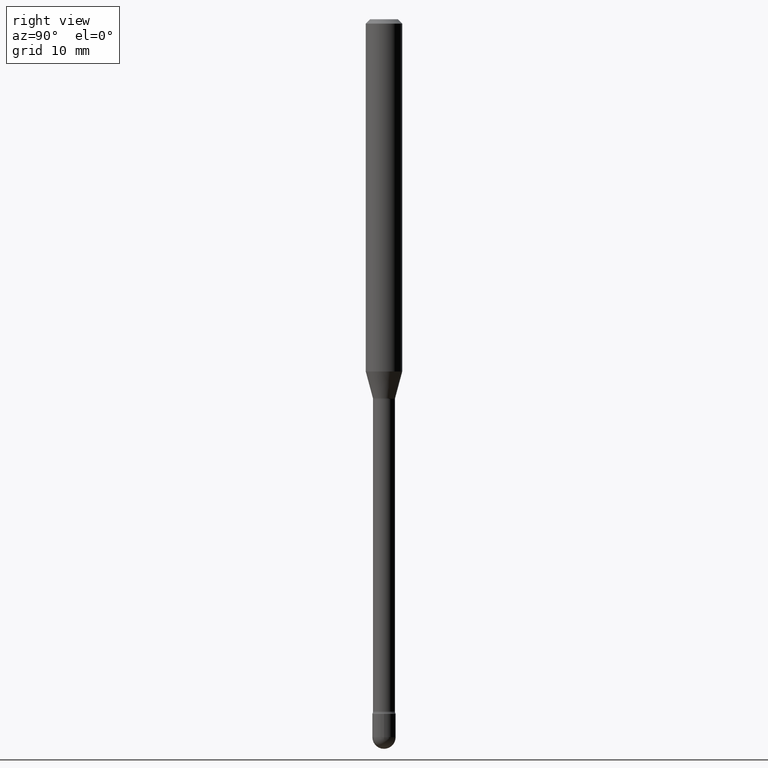
[diagram: clean part render]
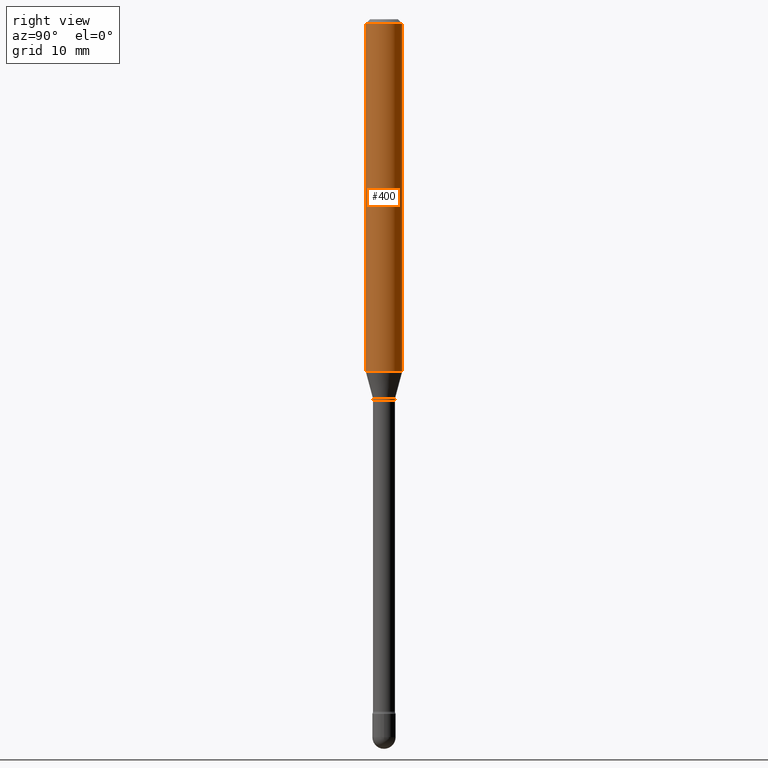
[diagram: same view with one face highlighted and labeled with its STEP entity id]
A machine part, right view. The second image highlights one B-rep face of the part: STEP entity #400.
In plain terms, the highlighted cylindrical surface (edge-blend (fillet) strip) has radius 1.5875 mm, axis along (-0, 0, 1).
Its self-contained STEP definition (entity closure, byte-faithful):
#13 = DIRECTION ( 'NONE',  ( -2.445460948409306574E-29, 3.491492591625370773E-15, 1.000000000000000000 ) ) ;
#57 = FACE_OUTER_BOUND ( 'NONE', #298, .T. ) ;
#109 = DIRECTION ( 'NONE',  ( -2.445460948409306574E-29, 3.491492591625370773E-15, 1.000000000000000000 ) ) ;
#113 = ORIENTED_EDGE ( 'NONE', *, *, #299, .T. ) ;
#115 = CARTESIAN_POINT ( 'NONE',  ( -4.364351673553916201E-16, -0.06250000000000000000, 6.962916858678317119E-16 ) ) ;
#131 = VERTEX_POINT ( 'NONE', #448 ) ;
#152 = CARTESIAN_POINT ( 'NONE',  ( 4.440892098500918040E-16, 0.06249999999999574646, -1.207071934891535525 ) ) ;
#170 = EDGE_CURVE ( 'NONE', #416, #206, #246, .T. ) ;
#172 = ORIENTED_EDGE ( 'NONE', *, *, #491, .T. ) ;
#198 = DIRECTION ( 'NONE',  ( -2.445460948409306855E-29, 3.491492591625370773E-15, 1.000000000000000000 ) ) ;
#206 = VERTEX_POINT ( 'NONE', #341 ) ;
#233 = DIRECTION ( 'NONE',  ( -2.445460948409306574E-29, 3.491492591625370773E-15, 1.000000000000000000 ) ) ;
#235 = EDGE_CURVE ( 'NONE', #206, #131, #370, .T. ) ;
#237 = DIRECTION ( 'NONE',  ( -2.445460948409306855E-29, 3.491492591625370773E-15, 1.000000000000000000 ) ) ;
#246 = LINE ( 'NONE', #115, #420 ) ;
#251 = DIRECTION ( 'NONE',  ( -6.982962677686265922E-15, -1.000000000000000000, 4.370956789862821150E-15 ) ) ;
#263 = DIRECTION ( 'NONE',  ( -6.982962677686265922E-15, -1.000000000000000000, 3.483106191921935554E-15 ) ) ;
#267 = ORIENTED_EDGE ( 'NONE', *, *, #170, .F. ) ;
#283 = CARTESIAN_POINT ( 'NONE',  ( -1.169113584055446105E-44, 1.669184350826100908E-30, 4.780733988912460139E-16 ) ) ;
#291 = CIRCLE ( 'NONE', #450, 0.06250000000000000000 ) ;
#298 = EDGE_LOOP ( 'NONE', ( #113, #172, #352, #267 ) ) ;
#299 = EDGE_CURVE ( 'NONE', #416, #382, #291, .T. ) ;
#323 = AXIS2_PLACEMENT_3D ( 'NONE', #283, #233, #392 ) ;
#341 = CARTESIAN_POINT ( 'NONE',  ( -4.364351673553912750E-16, -0.06250000000000005551, -0.01499999999999986587 ) ) ;
#352 = ORIENTED_EDGE ( 'NONE', *, *, #235, .F. ) ;
#360 = LINE ( 'NONE', #442, #524 ) ;
#362 = CARTESIAN_POINT ( 'NONE',  ( -4.364351673553623829E-16, -0.06250000000000424660, -1.207071934891535081 ) ) ;
#368 = CARTESIAN_POINT ( 'NONE',  ( 3.668191422613980058E-31, -5.237238887438085372E-17, -0.01500000000000008271 ) ) ;
#370 = CIRCLE ( 'NONE', #523, 0.06250000000000000000 ) ;
#382 = VERTEX_POINT ( 'NONE', #152 ) ;
#392 = DIRECTION ( 'NONE',  ( -6.982962677686265922E-15, -1.000000000000000000, 3.491492591625369984E-15 ) ) ;
#400 = ADVANCED_FACE ( 'NONE', ( #57 ), #518, .T. ) ;
#416 = VERTEX_POINT ( 'NONE', #362 ) ;
#420 = VECTOR ( 'NONE', #198, 39.37007874015748143 ) ;
#442 = CARTESIAN_POINT ( 'NONE',  ( 4.440892098500625669E-16, 0.06250000000000000000, 2.598551119146604146E-16 ) ) ;
#448 = CARTESIAN_POINT ( 'NONE',  ( 4.440892098500922971E-16, 0.06249999999999995143, -0.01500000000000030129 ) ) ;
#450 = AXIS2_PLACEMENT_3D ( 'NONE', #485, #109, #251 ) ;
#485 = CARTESIAN_POINT ( 'NONE',  ( 2.951847278698110549E-29, -4.214482718232697663E-15, -1.207071934891535303 ) ) ;
#491 = EDGE_CURVE ( 'NONE', #382, #131, #360, .T. ) ;
#518 = CYLINDRICAL_SURFACE ( 'NONE', #323, 0.06250000000000000000 ) ;
#523 = AXIS2_PLACEMENT_3D ( 'NONE', #368, #13, #263 ) ;
#524 = VECTOR ( 'NONE', #237, 39.37007874015748143 ) ;